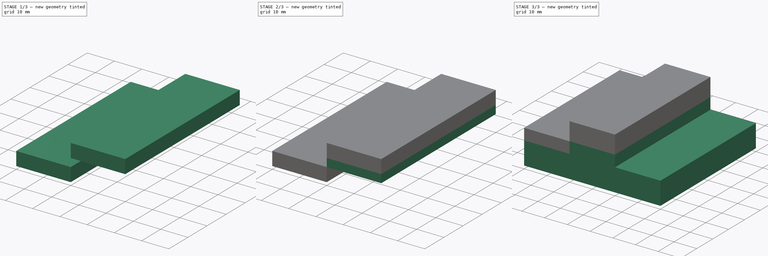
[diagram: build sequence overview — one tinted view per stage of 3, left to right]
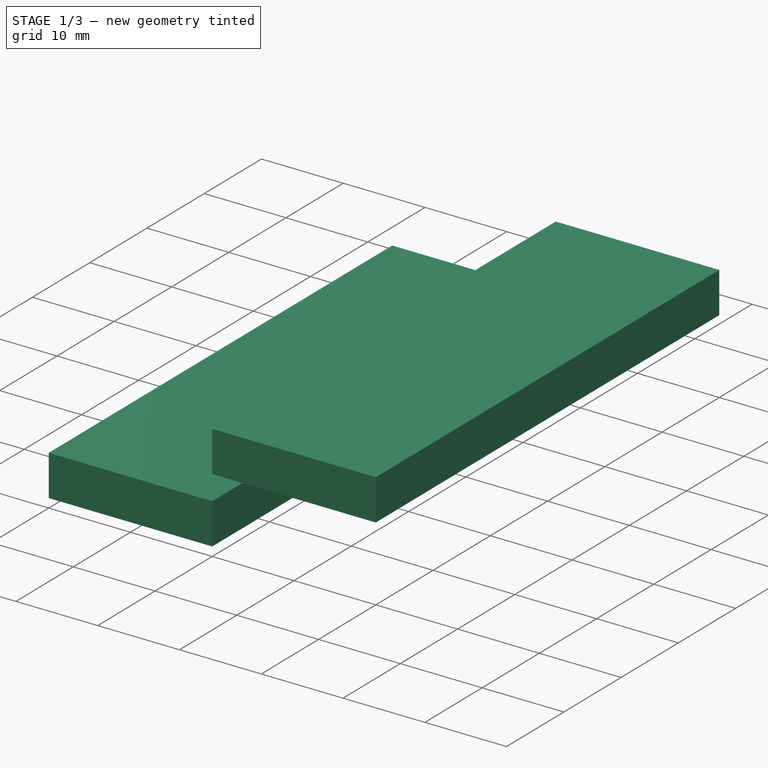
[diagram: stage 1 of 3 — iso view after this stage's code; geometry added in this stage tinted green]
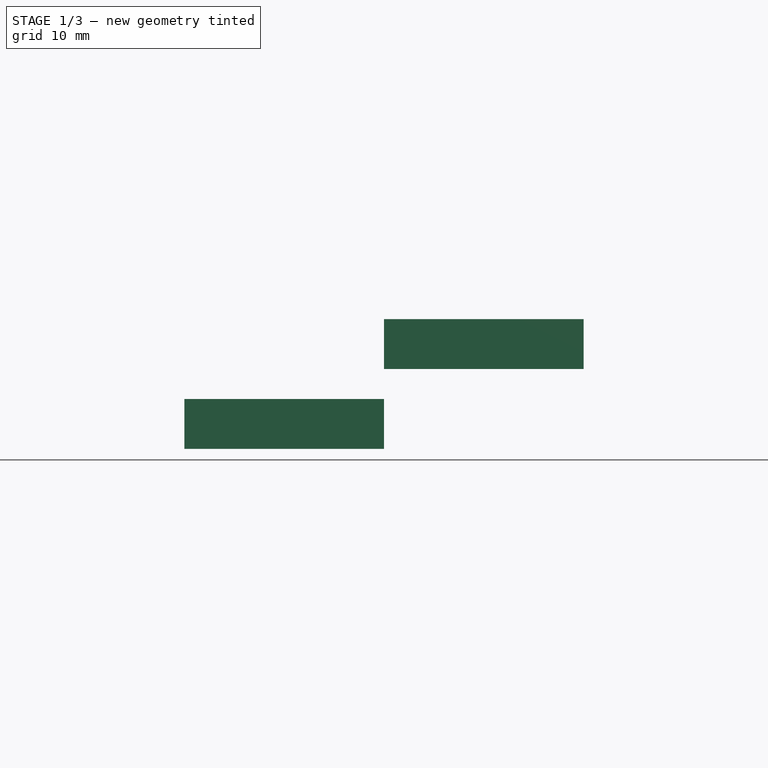
[diagram: stage 1 of 3 — front view after this stage's code; geometry added in this stage tinted green]
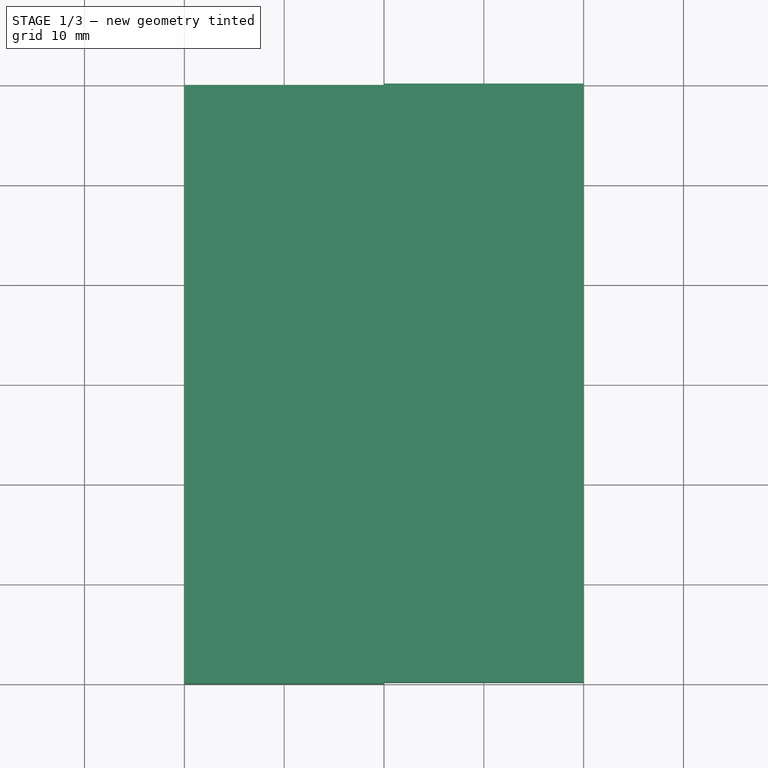
[diagram: stage 1 of 3 — top view after this stage's code; geometry added in this stage tinted green]
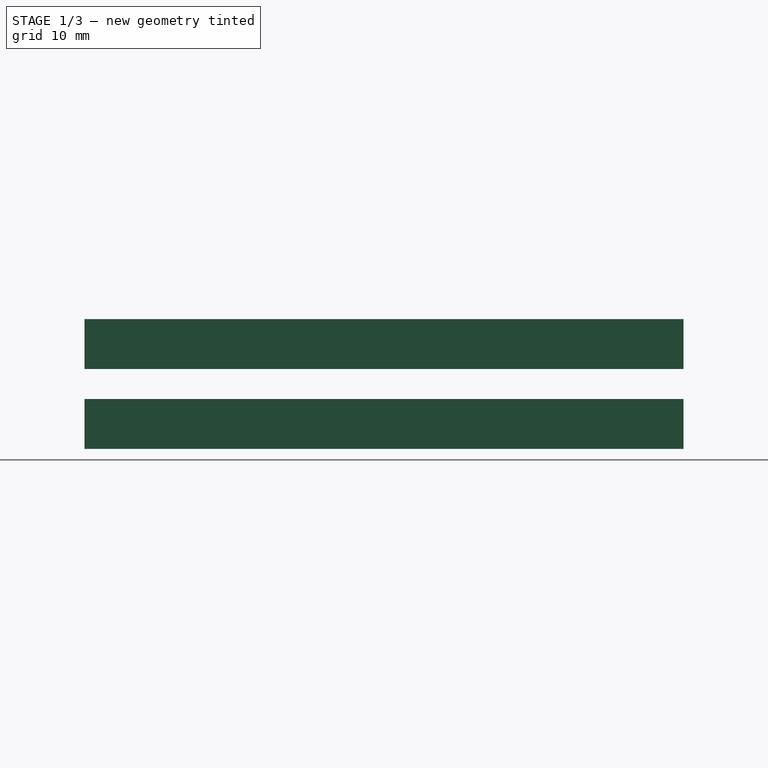
[diagram: stage 1 of 3 — right view after this stage's code; geometry added in this stage tinted green]
FCSTD DOCUMENT  (FreeCAD 1.1R43510 (Git))
Label: mosfet-silicio
License: All rights reserved
LicenseURL: http://en.wikipedia.org/wiki/All_rights_reserved
objects: Sketcher::SketchObject×5, PartDesign::Pad×5, Part::Part2DObjectPython×5, App::Part×1, App::Point×1
note: 30 computed .brp shape members not serialized (recipe doc carries the construction recipe); baked Part::Feature solids carry a one-line shape summary decoded from their .brp

FEATURE [Sketcher::SketchObject] Sketch003  label="metal-gate-sketch"
  ArcFitTolerance = 0
  ExternalTypes = [0]
  FullyConstrained = true
  MakeInternals = false
  MapMode = 5
  Placement = pos=(0,0,18) rot=(0,0,1;0rad)
  sketch-geometry (4):
    g0: LineSegment StartX=-10 StartY=30 StartZ=0 EndX=10 EndY=30 EndZ=0
    g1: LineSegment StartX=10 StartY=30 StartZ=0 EndX=10 EndY=-30 EndZ=0
    g2: LineSegment StartX=10 StartY=-30 StartZ=0 EndX=-10 EndY=-30 EndZ=0
    g3: LineSegment StartX=-10 StartY=-30 StartZ=0 EndX=-10 EndY=30 EndZ=0
  constraints (11):
    c: Coincident(g0,g1)
    c: Coincident(g1,g2)
    c: Coincident(g2,g3)
    c: Coincident(g3,g0)
    c: Horizontal(g0)
    c: Horizontal(g2)
    c: Vertical(g1)
    c: Vertical(g3)
    c: Symmetric(g0,g1,g-1)
    c: DistanceX(g0,g0) = 20
    c: DistanceY(g1,g1) = 60
FEATURE [PartDesign::Pad] Pad003  label="Metal-gate"
  AllowMultiFace = false
  Direction = (0,0,1)
  Length = 5
  Length2 = 100
  Placement = pos=(0,0,18) rot=(0,0,1;0rad)
  Profile = -> Sketch003
  Refine = true
  SideType = 0
  Suppressed = false
  Type = 0
  Type2 = 0
FEATURE [Part::Part2DObjectPython] ShapeString  label="Test-Type-P-si"  # Draft 2D object (typed FeaturePython)
  FontFile = <userpath>/develop/myslides/2017-05-05-Electronica-dig-divertica-FPGAs-libres-PEAC-IES-Juan-cierva/images/src/OpenSans-Bold.ttf
  Fuse = false
  Justification = 6
  JustificationReference = 0
  KeepLeftMargin = true
  MakeFace = true
  MapMode = 5
  ObliqueAngle = 0
  Placement = pos=(-10.2588,-30.3,4.11379) rot=(1,0,0;1.5708rad)
  ScaleToSize = false
  Size = 3
  String = Silicio Tipo P
  Tracking = 0
FEATURE [Part::Part2DObjectPython] ShapeString001  label="Test-Type-N-si"  # Draft 2D object (typed FeaturePython)
  FontFile = <userpath>/develop/myslides/2017-05-05-Electronica-dig-divertica-FPGAs-libres-PEAC-IES-Juan-cierva/images/src/OpenSans-Bold.ttf
  Fuse = false
  Justification = 6
  JustificationReference = 0
  KeepLeftMargin = true
  MakeFace = true
  MapMode = 5
  ObliqueAngle = 0
  Placement = pos=(-27.5606,-30.3,11.846) rot=(1,0,0;1.5708rad)
  ScaleToSize = false
  Size = 2
  String = Silicio Tipo N
  Tracking = 0
FEATURE [Part::Part2DObjectPython] ShapeString002  label="Test-Type-N-si001"  # Draft 2D object (typed FeaturePython)
  FontFile = <userpath>/develop/myslides/2017-05-05-Electronica-dig-divertica-FPGAs-libres-PEAC-IES-Juan-cierva/images/src/OpenSans-Bold.ttf
  Fuse = false
  Justification = 6
  JustificationReference = 0
  KeepLeftMargin = true
  MakeFace = true
  MapMode = 5
  ObliqueAngle = 0
  Placement = pos=(13.4394,-30.3,11.846) rot=(1,0,0;1.5708rad)
  ScaleToSize = false
  Size = 2
  String = Silicio Tipo N
  Tracking = 0
FEATURE [Part::Part2DObjectPython] ShapeString003  label="Text-oxide"  # Draft 2D object (typed FeaturePython)
  FontFile = <userpath>/develop/myslides/2017-05-05-Electronica-dig-divertica-FPGAs-libres-PEAC-IES-Juan-cierva/images/src/OpenSans-Bold.ttf
  Fuse = false
  Justification = 6
  JustificationReference = 0
  KeepLeftMargin = true
  MakeFace = true
  MapMode = 5
  ObliqueAngle = 0
  Placement = pos=(-3.84455,-30.3,15.7238) rot=(1,0,0;1.5708rad)
  ScaleToSize = false
  Size = 2
  String = Oxido
  Tracking = 0
FEATURE [Part::Part2DObjectPython] ShapeString004  label="Text-metal"  # Draft 2D object (typed FeaturePython)
  FontFile = <userpath>/develop/myslides/2017-05-05-Electronica-dig-divertica-FPGAs-libres-PEAC-IES-Juan-cierva/images/src/OpenSans-Bold.ttf
  Fuse = false
  Justification = 6
  JustificationReference = 0
  KeepLeftMargin = true
  MakeFace = true
  MapMode = 5
  ObliqueAngle = 0
  Placement = pos=(-4.14695,-30.3,19.8489) rot=(1,0,0;1.5708rad)
  ScaleToSize = false
  Size = 2
  String = Metal
  Tracking = 0
FEATURE [Sketcher::SketchObject] Sketch004  label="n-type-si-sketch001"
  ArcFitTolerance = 0
  ExternalTypes = [0]
  FullyConstrained = true
  MakeInternals = false
  MapMode = 5
  Placement = pos=(0,0,10) rot=(0,0,1;0rad)
  sketch-geometry (4):
    g0: LineSegment StartX=-30 StartY=30 StartZ=0 EndX=-10 EndY=30 EndZ=0
    g1: LineSegment StartX=-10 StartY=30 StartZ=0 EndX=-10 EndY=-30 EndZ=0
    g2: LineSegment StartX=-10 StartY=-30 StartZ=0 EndX=-30 EndY=-30 EndZ=0
    g3: LineSegment StartX=-30 StartY=-30 StartZ=0 EndX=-30 EndY=30 EndZ=0
  constraints (11):
    c: Coincident(g0,g1)
    c: Coincident(g1,g2)
    c: Coincident(g2,g3)
    c: Coincident(g3,g0)
    c: Horizontal(g0)
    c: Horizontal(g2)
    c: Vertical(g1)
    c: Symmetric(g0,g2,g-1)
    c: DistanceX(g0,g0) = 20
    c: DistanceY(g3,g3) = 60
    c: DistanceX(g0,g-1) = 10
FEATURE [PartDesign::Pad] Pad004  label="n-type-si001"
  AllowMultiFace = false
  Direction = (0,0,1)
  Length = 5
  Length2 = 100
  Placement = pos=(0,0,10) rot=(0,0,1;0rad)
  Profile = -> Sketch004
  Refine = true
  SideType = 0
  Suppressed = false
  Type = 0
  Type2 = 0
FEATURE [App::Part] Part
  Group = -> [Sketch004,Pad004]
  Origin = -> Origin
  Placement = pos=(40,0,0) rot=(0,0,1;0rad)
FEATURE [App::Point] Origin001
  Role = Origin
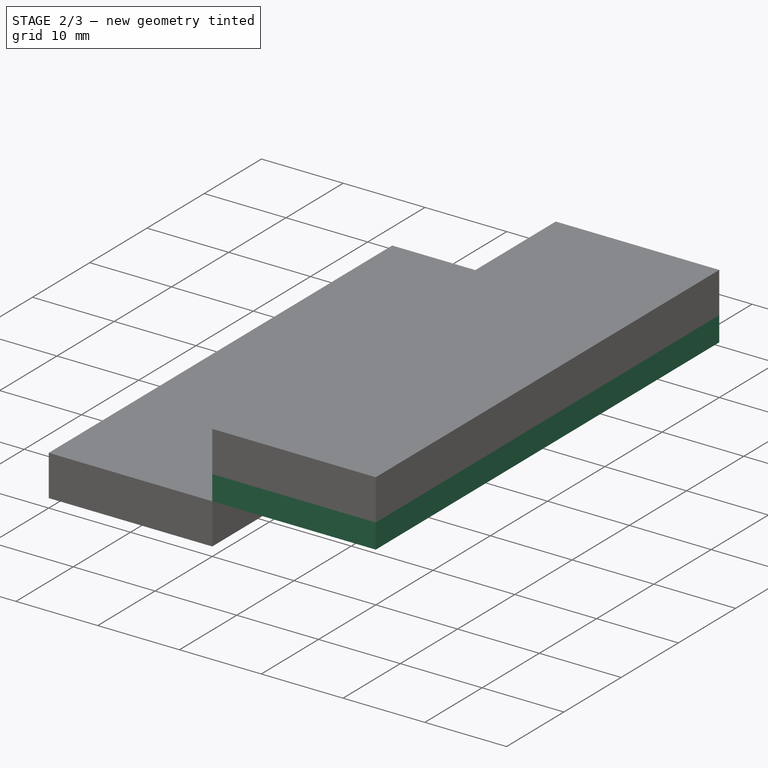
[diagram: stage 2 of 3 — iso view after this stage's code; geometry added in this stage tinted green]
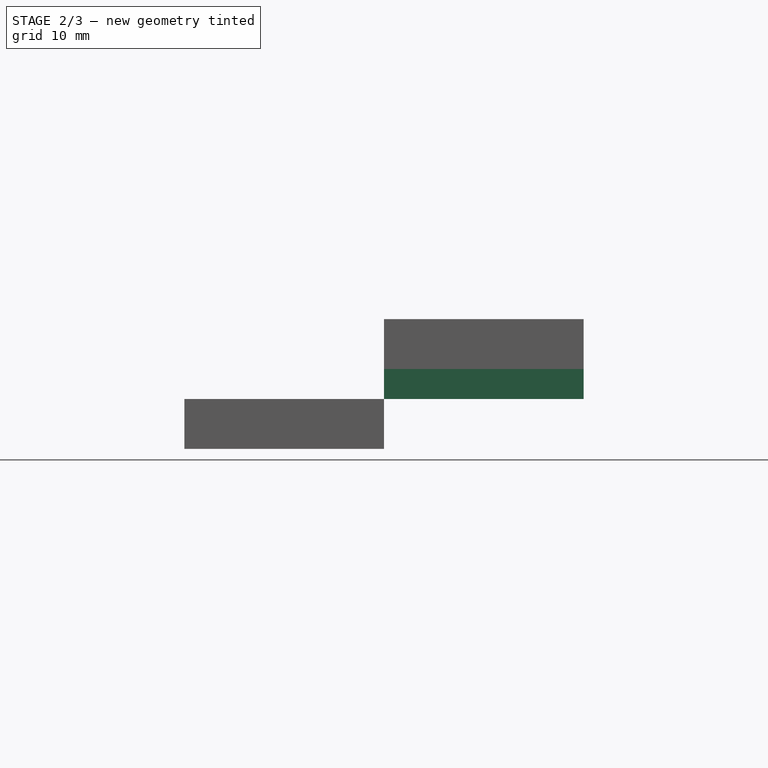
[diagram: stage 2 of 3 — front view after this stage's code; geometry added in this stage tinted green]
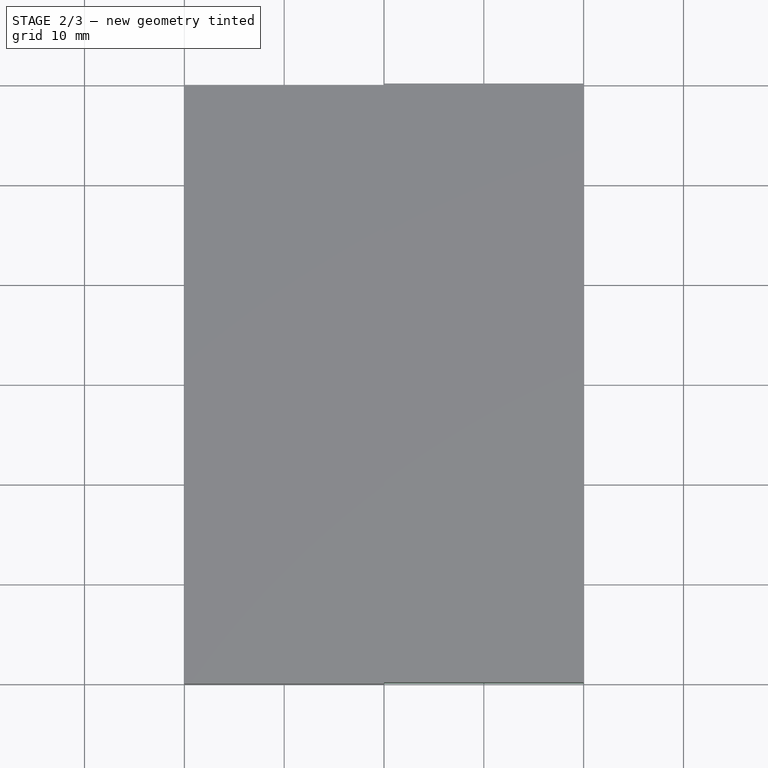
[diagram: stage 2 of 3 — top view after this stage's code; geometry added in this stage tinted green]
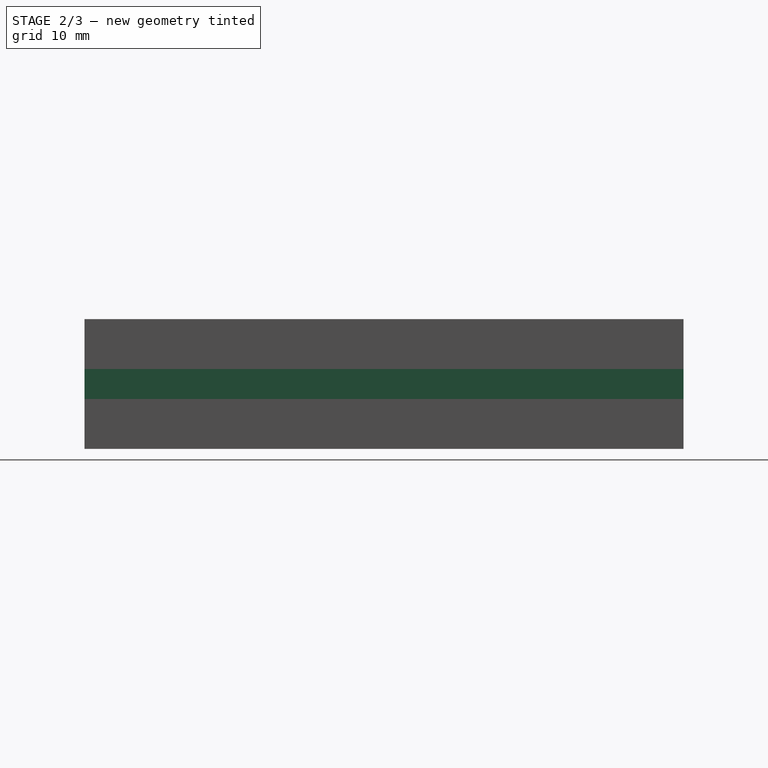
[diagram: stage 2 of 3 — right view after this stage's code; geometry added in this stage tinted green]
FEATURE [Sketcher::SketchObject] Sketch002  label="oxide-film-sketch"
  ArcFitTolerance = 0
  ExternalTypes = [0]
  FullyConstrained = true
  MakeInternals = false
  MapMode = 5
  Placement = pos=(0,0,15) rot=(0,0,1;0rad)
  sketch-geometry (4):
    g0: LineSegment StartX=-10 StartY=30 StartZ=0 EndX=10 EndY=30 EndZ=0
    g1: LineSegment StartX=10 StartY=30 StartZ=0 EndX=10 EndY=-30 EndZ=0
    g2: LineSegment StartX=10 StartY=-30 StartZ=0 EndX=-10 EndY=-30 EndZ=0
    g3: LineSegment StartX=-10 StartY=-30 StartZ=0 EndX=-10 EndY=30 EndZ=0
  constraints (11):
    c: Coincident(g0,g1)
    c: Coincident(g1,g2)
    c: Coincident(g2,g3)
    c: Coincident(g3,g0)
    c: Horizontal(g0)
    c: Horizontal(g2)
    c: Vertical(g1)
    c: Vertical(g3)
    c: Symmetric(g0,g1,g-1)
    c: DistanceX(g0,g0) = 20
    c: DistanceY(g1,g1) = 60
FEATURE [PartDesign::Pad] Pad002  label="oxide-film"
  AllowMultiFace = false
  Direction = (0,0,1)
  Length = 3
  Length2 = 100
  Placement = pos=(0,0,15) rot=(0,0,1;0rad)
  Profile = -> Sketch002
  Refine = true
  SideType = 0
  Suppressed = false
  Type = 0
  Type2 = 0
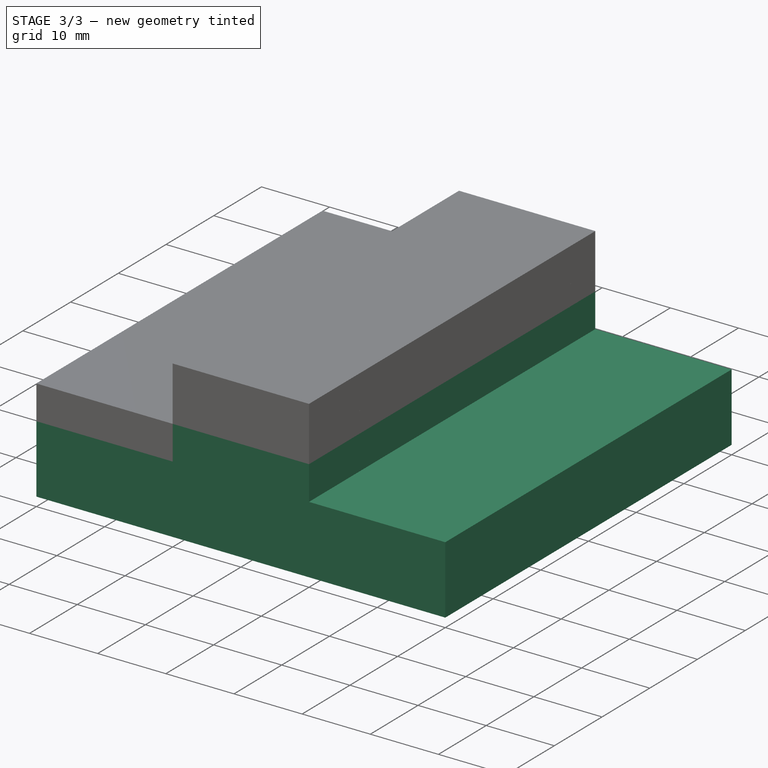
[diagram: stage 3 of 3 — iso view after this stage's code; geometry added in this stage tinted green]
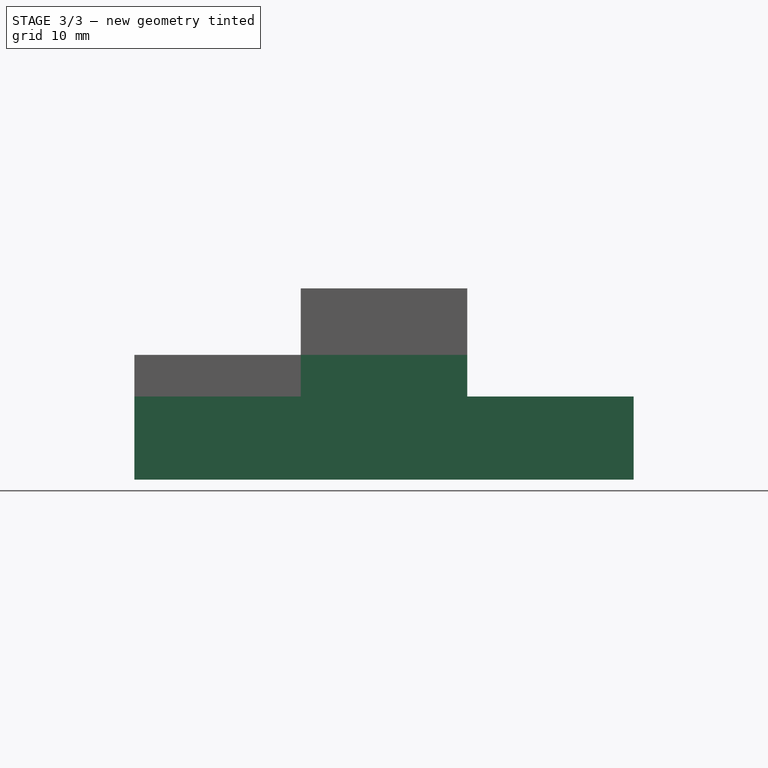
[diagram: stage 3 of 3 — front view after this stage's code; geometry added in this stage tinted green]
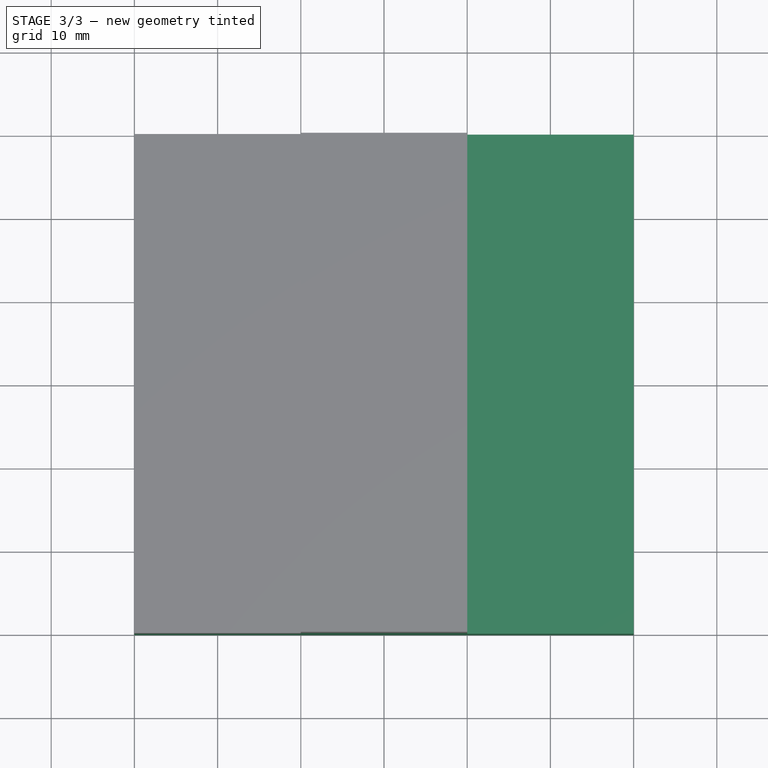
[diagram: stage 3 of 3 — top view after this stage's code; geometry added in this stage tinted green]
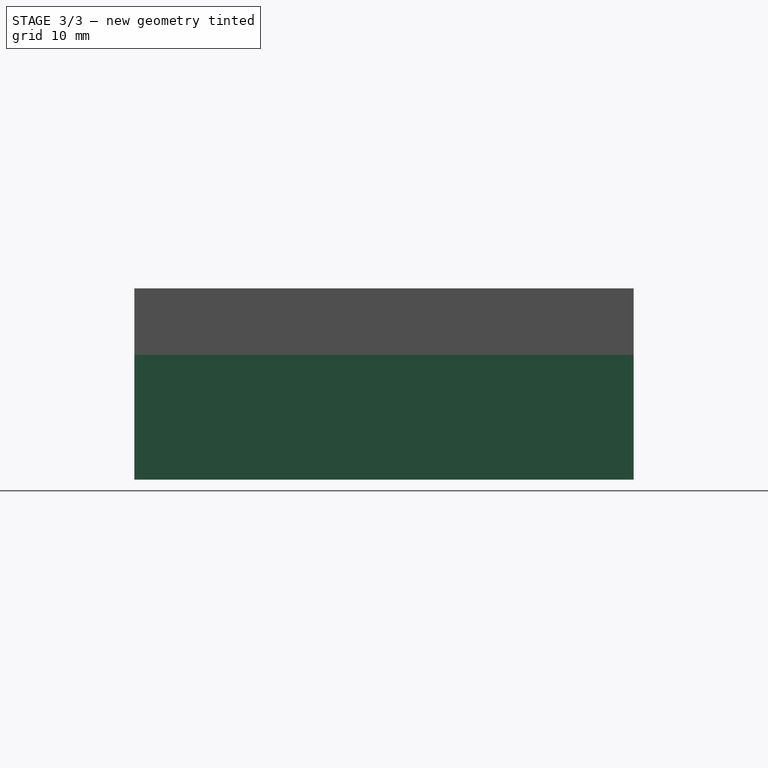
[diagram: stage 3 of 3 — right view after this stage's code; geometry added in this stage tinted green]
FEATURE [Sketcher::SketchObject] Sketch  label="p-type-si-sketch"
  ArcFitTolerance = 0
  ExternalTypes = [0]
  FullyConstrained = true
  MakeInternals = false
  MapMode = 5
  Placement = pos=(0,0,0) rot=(-1,0,0;4.71239rad)
  sketch-geometry (8):
    g0: LineSegment StartX=-30 StartY=0 StartZ=0 EndX=-30 EndY=10 EndZ=0
    g1: LineSegment StartX=-30 StartY=10 StartZ=0 EndX=-10 EndY=10 EndZ=0
    g2: LineSegment StartX=-10 StartY=10 StartZ=0 EndX=-10 EndY=15 EndZ=0
    g3: LineSegment StartX=-10 StartY=15 StartZ=0 EndX=10 EndY=15 EndZ=0
    g4: LineSegment StartX=10 StartY=15 StartZ=0 EndX=10 EndY=10 EndZ=0
    g5: LineSegment StartX=10 StartY=10 StartZ=0 EndX=30 EndY=10 EndZ=0
    g6: LineSegment StartX=30 StartY=10 StartZ=0 EndX=30 EndY=0 EndZ=0
    g7: LineSegment StartX=30 StartY=0 StartZ=0 EndX=-30 EndY=0 EndZ=0
  constraints (22):
    c: Vertical(g0)
    c: Coincident(g0,g1)
    c: Horizontal(g1)
    c: Coincident(g1,g2)
    c: Vertical(g2)
    c: Coincident(g2,g3)
    c: Horizontal(g3)
    c: Coincident(g3,g4)
    c: Vertical(g4)
    c: Coincident(g4,g5)
    c: Horizontal(g5)
    c: Coincident(g5,g6)
    c: Vertical(g6)
    c: Coincident(g6,g7)
    c: Coincident(g0,g7)
    c: PointOnObject(g0,g-1)
    c: DistanceY(g0,g0) = 10
    c: DistanceX(g1,g1) = 20
    c: DistanceX(g3,g3) = 20
    c: Symmetric(g1,g4,g-2)
    c: DistanceY(g4,g4) = 5
    c: Symmetric(g0,g6,g-2)
FEATURE [PartDesign::Pad] Pad  label="p-type-si"
  AllowMultiFace = false
  Direction = (0,-1,0)
  Length = 60
  Length2 = 100
  Placement = pos=(0,0,0) rot=(-1,0,0;4.71239rad)
  Profile = -> Sketch
  Refine = true
  SideType = 2
  Suppressed = false
  Type = 0
  Type2 = 0
FEATURE [Sketcher::SketchObject] Sketch001  label="n-type-si-sketch"
  ArcFitTolerance = 0
  ExternalTypes = [0]
  FullyConstrained = true
  MakeInternals = false
  MapMode = 5
  Placement = pos=(0,0,10) rot=(0,0,1;0rad)
  sketch-geometry (4):
    g0: LineSegment StartX=-30 StartY=30 StartZ=0 EndX=-10 EndY=30 EndZ=0
    g1: LineSegment StartX=-10 StartY=30 StartZ=0 EndX=-10 EndY=-30 EndZ=0
    g2: LineSegment StartX=-10 StartY=-30 StartZ=0 EndX=-30 EndY=-30 EndZ=0
    g3: LineSegment StartX=-30 StartY=-30 StartZ=0 EndX=-30 EndY=30 EndZ=0
  constraints (11):
    c: Coincident(g0,g1)
    c: Coincident(g1,g2)
    c: Coincident(g2,g3)
    c: Coincident(g3,g0)
    c: Horizontal(g0)
    c: Horizontal(g2)
    c: Vertical(g1)
    c: Symmetric(g0,g2,g-1)
    c: DistanceX(g0,g0) = 20
    c: DistanceY(g3,g3) = 60
    c: DistanceX(g0,g-1) = 10
FEATURE [PartDesign::Pad] Pad001  label="n-type-si"
  AllowMultiFace = false
  Direction = (0,0,1)
  Length = 5
  Length2 = 100
  Placement = pos=(0,0,10) rot=(0,0,1;0rad)
  Profile = -> Sketch001
  Refine = true
  SideType = 0
  Suppressed = false
  Type = 0
  Type2 = 0
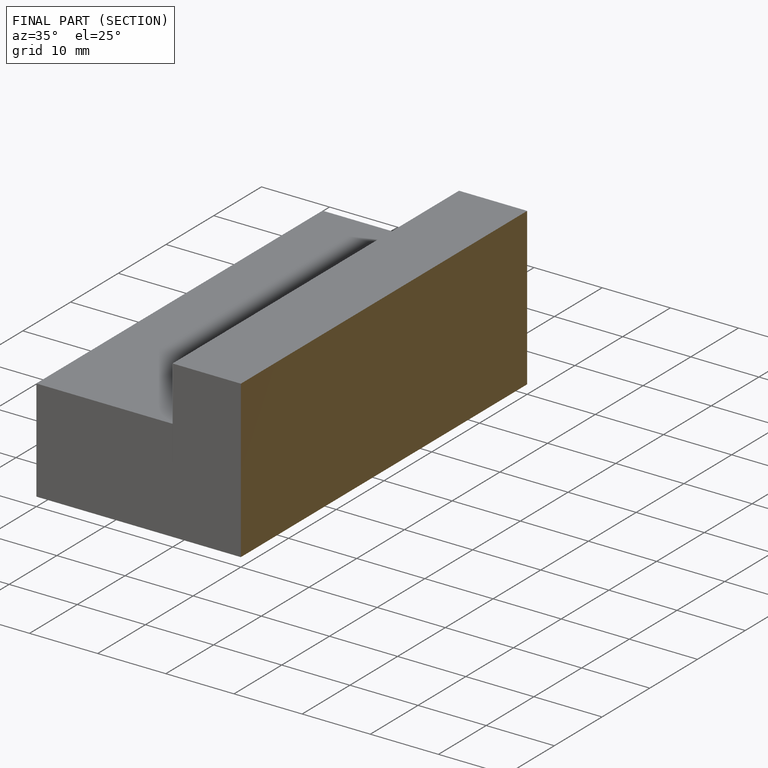
[diagram: finished part — half-section view (interior)]
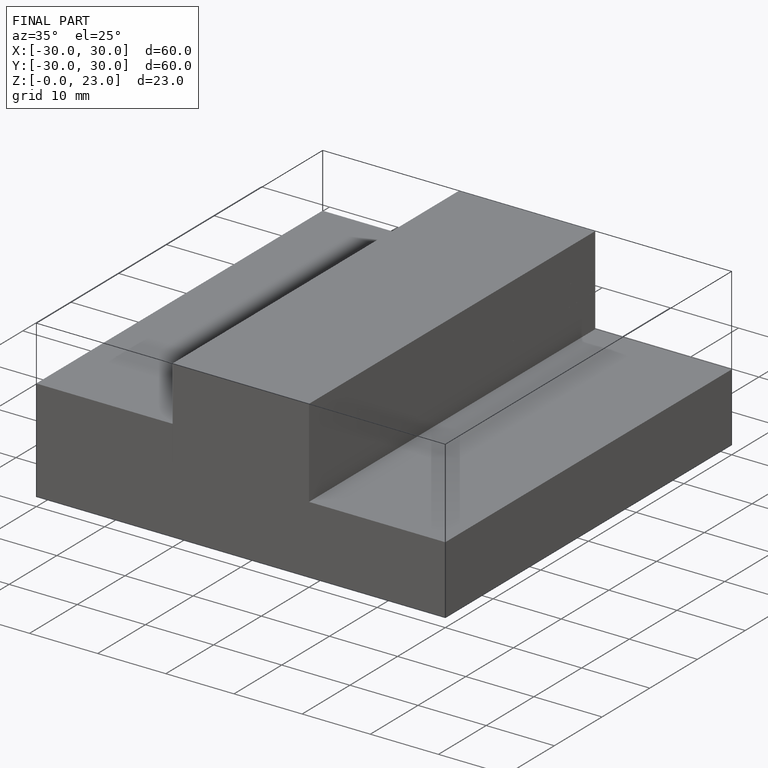
[diagram: finished part — iso view with bounding-box wireframe]
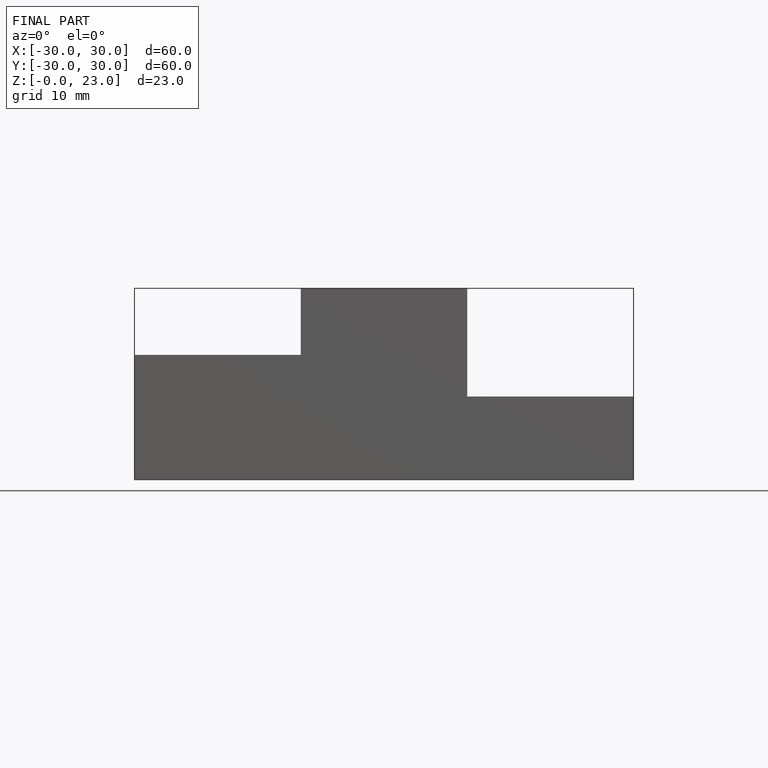
[diagram: finished part — front view with bounding-box wireframe]
